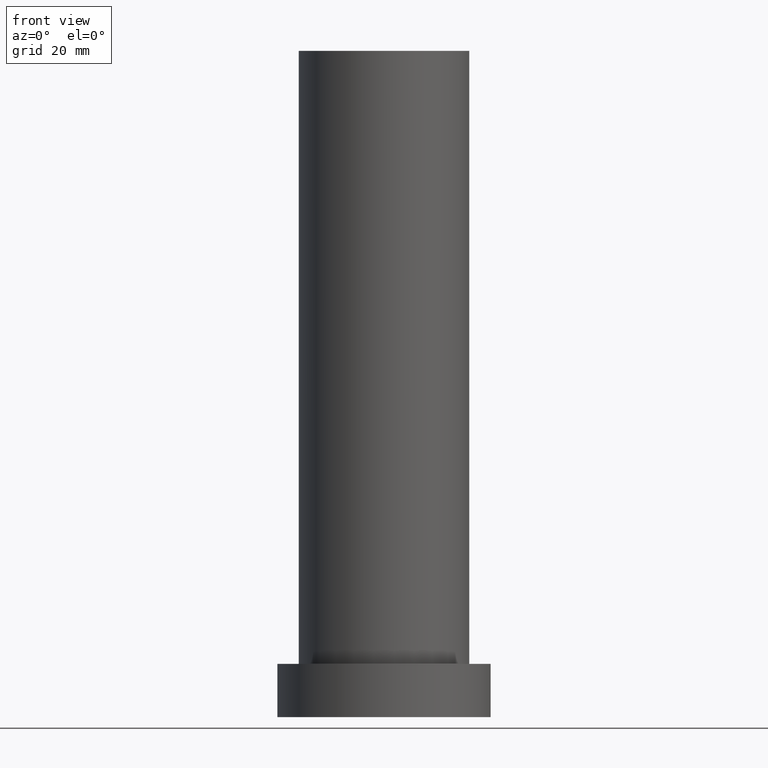
[diagram: clean part render]
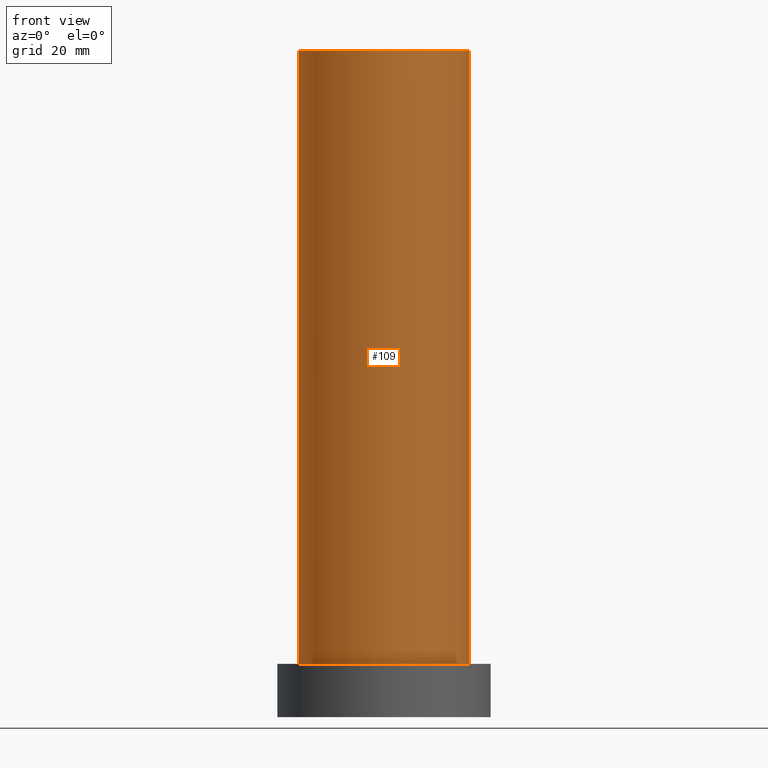
[diagram: same view with one face highlighted and labeled with its STEP entity id]
A machine part, front view. The second image highlights one B-rep face of the part: STEP entity #109.
In plain terms, the highlighted cylindrical surface (partial cylindrical patch) has radius 16 mm, axis along (-0, -0, -1).
Its self-contained STEP definition (entity closure, byte-faithful):
#4 = DIRECTION ( 'NONE',  ( 0.000000000000000000, 0.000000000000000000, 1.000000000000000000 ) ) ;
#9 = ORIENTED_EDGE ( 'NONE', *, *, #211, .T. ) ;
#17 = EDGE_LOOP ( 'NONE', ( #245, #239, #9, #141 ) ) ;
#19 = DIRECTION ( 'NONE',  ( -0.000000000000000000, -0.000000000000000000, -1.000000000000000000 ) ) ;
#20 = DIRECTION ( 'NONE',  ( 1.000000000000000000, 0.000000000000000000, 0.000000000000000000 ) ) ;
#26 = DIRECTION ( 'NONE',  ( -0.000000000000000000, -0.000000000000000000, -1.000000000000000000 ) ) ;
#40 = AXIS2_PLACEMENT_3D ( 'NONE', #126, #107, #213 ) ;
#41 = LINE ( 'NONE', #106, #186 ) ;
#57 = CARTESIAN_POINT ( 'NONE',  ( 0.000000000000000000, 0.000000000000000000, 125.0000000000000000 ) ) ;
#63 = VECTOR ( 'NONE', #127, 1000.000000000000000 ) ;
#73 = DIRECTION ( 'NONE',  ( -1.000000000000000000, 0.000000000000000000, 0.000000000000000000 ) ) ;
#82 = CARTESIAN_POINT ( 'NONE',  ( 16.00000000000000000, 1.959434878635765131E-15, 10.00000000000000000 ) ) ;
#90 = VERTEX_POINT ( 'NONE', #238 ) ;
#94 = CIRCLE ( 'NONE', #40, 16.00000000000000000 ) ;
#99 = VERTEX_POINT ( 'NONE', #205 ) ;
#106 = CARTESIAN_POINT ( 'NONE',  ( 16.00000000000000000, 1.959434878635765131E-15, 125.0000000000000000 ) ) ;
#107 = DIRECTION ( 'NONE',  ( 0.000000000000000000, 0.000000000000000000, 1.000000000000000000 ) ) ;
#109 = ADVANCED_FACE ( 'NONE', ( #115 ), #181, .T. ) ;
#113 = CARTESIAN_POINT ( 'NONE',  ( 0.000000000000000000, 0.000000000000000000, 125.0000000000000000 ) ) ;
#115 = FACE_OUTER_BOUND ( 'NONE', #17, .T. ) ;
#122 = CARTESIAN_POINT ( 'NONE',  ( -16.00000000000000000, 0.000000000000000000, 125.0000000000000000 ) ) ;
#123 = AXIS2_PLACEMENT_3D ( 'NONE', #57, #4, #20 ) ;
#126 = CARTESIAN_POINT ( 'NONE',  ( 0.000000000000000000, 0.000000000000000000, 10.00000000000000000 ) ) ;
#127 = DIRECTION ( 'NONE',  ( -0.000000000000000000, -0.000000000000000000, -1.000000000000000000 ) ) ;
#134 = EDGE_CURVE ( 'NONE', #90, #99, #215, .T. ) ;
#141 = ORIENTED_EDGE ( 'NONE', *, *, #235, .T. ) ;
#148 = LINE ( 'NONE', #122, #63 ) ;
#162 = AXIS2_PLACEMENT_3D ( 'NONE', #113, #19, #73 ) ;
#176 = EDGE_CURVE ( 'NONE', #99, #241, #41, .T. ) ;
#181 = CYLINDRICAL_SURFACE ( 'NONE', #162, 16.00000000000000000 ) ;
#186 = VECTOR ( 'NONE', #26, 1000.000000000000000 ) ;
#205 = CARTESIAN_POINT ( 'NONE',  ( 16.00000000000000000, 1.959434878635765131E-15, 125.0000000000000000 ) ) ;
#211 = EDGE_CURVE ( 'NONE', #90, #227, #148, .T. ) ;
#213 = DIRECTION ( 'NONE',  ( 1.000000000000000000, 0.000000000000000000, 0.000000000000000000 ) ) ;
#214 = CARTESIAN_POINT ( 'NONE',  ( -16.00000000000000000, 0.000000000000000000, 10.00000000000000000 ) ) ;
#215 = CIRCLE ( 'NONE', #123, 16.00000000000000000 ) ;
#227 = VERTEX_POINT ( 'NONE', #214 ) ;
#235 = EDGE_CURVE ( 'NONE', #227, #241, #94, .T. ) ;
#238 = CARTESIAN_POINT ( 'NONE',  ( -16.00000000000000000, 0.000000000000000000, 125.0000000000000000 ) ) ;
#239 = ORIENTED_EDGE ( 'NONE', *, *, #134, .F. ) ;
#241 = VERTEX_POINT ( 'NONE', #82 ) ;
#245 = ORIENTED_EDGE ( 'NONE', *, *, #176, .F. ) ;